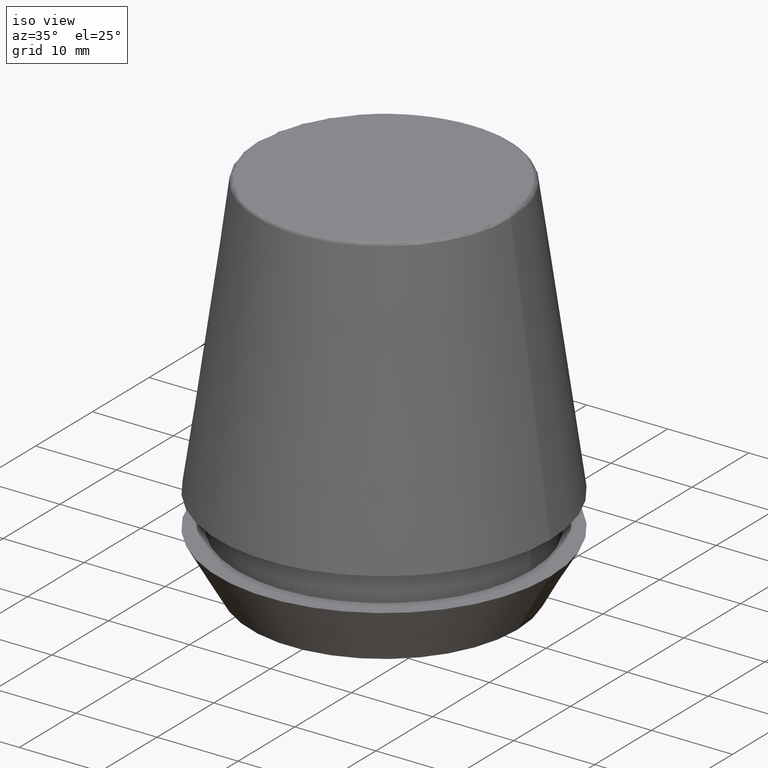
[diagram: clean part render]
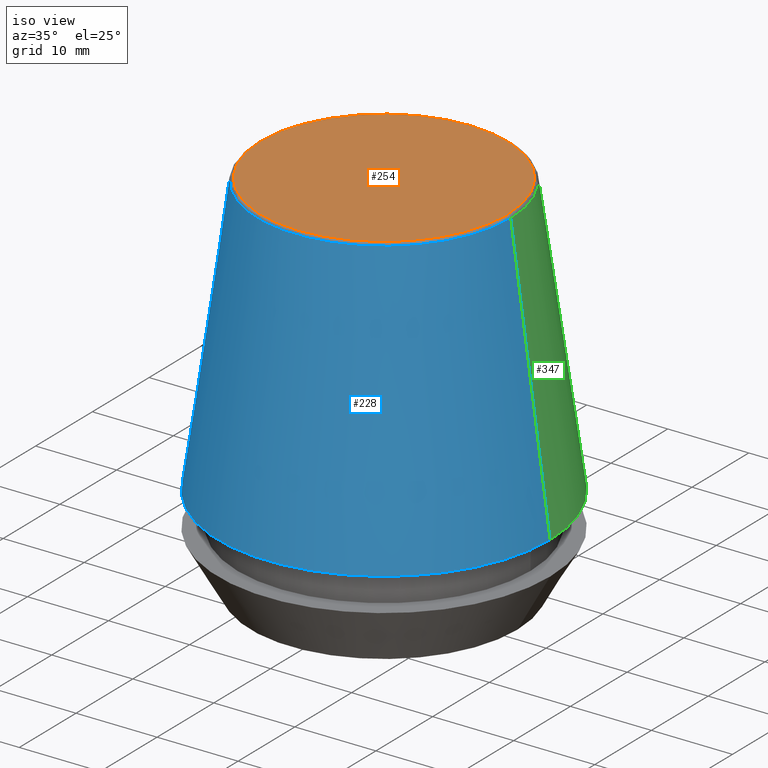
[diagram: same view with three faces highlighted in distinct colors, each labeled with its STEP entity id]
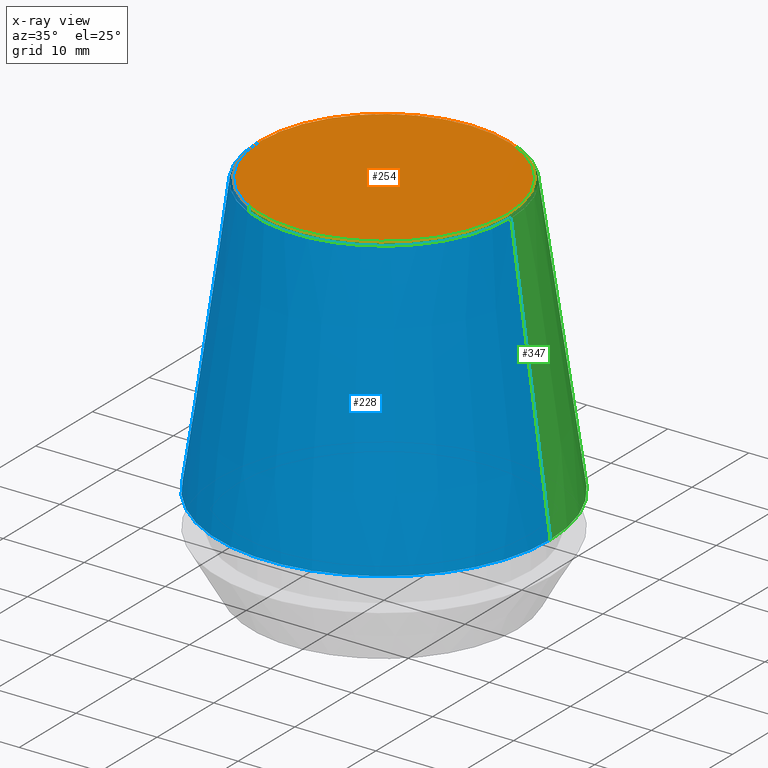
[diagram: x-ray of the same camera — body ghosted, the three highlighted faces saturated]
A machine part, iso view with three faces highlighted in distinct colors.
The next image is the same camera in x-ray (body ghosted, the three faces saturated) — at least one of them is partly hidden behind the body in this view.
Their STEP definitions:

[orange] entity #254 — the highlighted planar face has unit normal (0, 0, -1).
#36 = ORIENTED_EDGE ( 'NONE', *, *, #66, .T. ) ;
#51 = PLANE ( 'NONE',  #370 ) ;
#66 = EDGE_CURVE ( 'NONE', #146, #302, #201, .T. ) ;
#79 = DIRECTION ( 'NONE',  ( -0.0000000000000000000, -0.0000000000000000000, 1.000000000000000000 ) ) ;
#112 = EDGE_LOOP ( 'NONE', ( #36, #292 ) ) ;
#132 = CARTESIAN_POINT ( 'NONE',  ( 0.0000000000000000000, 0.0000000000000000000, 46.00000000000000000 ) ) ;
#146 = VERTEX_POINT ( 'NONE', #383 ) ;
#154 = FACE_OUTER_BOUND ( 'NONE', #112, .T. ) ;
#165 = DIRECTION ( 'NONE',  ( 0.0000000000000000000, 0.0000000000000000000, -1.000000000000000000 ) ) ;
#169 = DIRECTION ( 'NONE',  ( 1.000000000000000000, 0.0000000000000000000, 0.0000000000000000000 ) ) ;
#192 = CARTESIAN_POINT ( 'NONE',  ( -15.24773554530077600, 1.891563625393435400E-015, 46.00000000000000000 ) ) ;
#201 = CIRCLE ( 'NONE', #282, 15.24773554530077600 ) ;
#218 = AXIS2_PLACEMENT_3D ( 'NONE', #132, #332, #169 ) ;
#254 = ADVANCED_FACE ( 'NONE', ( #154 ), #51, .F. ) ;
#256 = DIRECTION ( 'NONE',  ( 1.000000000000000000, 0.0000000000000000000, 0.0000000000000000000 ) ) ;
#281 = CARTESIAN_POINT ( 'NONE',  ( 0.0000000000000000000, 0.0000000000000000000, 46.00000000000000000 ) ) ;
#282 = AXIS2_PLACEMENT_3D ( 'NONE', #281, #79, #256 ) ;
#292 = ORIENTED_EDGE ( 'NONE', *, *, #359, .T. ) ;
#302 = VERTEX_POINT ( 'NONE', #192 ) ;
#332 = DIRECTION ( 'NONE',  ( -0.0000000000000000000, -0.0000000000000000000, 1.000000000000000000 ) ) ;
#342 = CARTESIAN_POINT ( 'NONE',  ( 0.0000000000000000000, 15.24773554530077600, 46.00000000000000000 ) ) ;
#353 = DIRECTION ( 'NONE',  ( -1.000000000000000000, 0.0000000000000000000, -0.0000000000000000000 ) ) ;
#359 = EDGE_CURVE ( 'NONE', #302, #146, #387, .T. ) ;
#370 = AXIS2_PLACEMENT_3D ( 'NONE', #342, #165, #353 ) ;
#383 = CARTESIAN_POINT ( 'NONE',  ( 15.24773554530077600, 0.0000000000000000000, 46.00000000000000000 ) ) ;
#387 = CIRCLE ( 'NONE', #218, 15.24773554530077600 ) ;

[blue] entity #228 — the highlighted conical surface has half-angle 8 deg.
#23 = ORIENTED_EDGE ( 'NONE', *, *, #378, .T. ) ;
#27 = CARTESIAN_POINT ( 'NONE',  ( -20.50032537154048700, 0.0000000000000000000, 11.09999999999999800 ) ) ;
#35 = VECTOR ( 'NONE', #360, 1000.000000000000000 ) ;
#42 = CIRCLE ( 'NONE', #274, 20.50032537154048700 ) ;
#43 = CARTESIAN_POINT ( 'NONE',  ( 20.50032537154048700, 2.510565784773633700E-015, 11.09999999999999800 ) ) ;
#44 = EDGE_CURVE ( 'NONE', #313, #64, #42, .T. ) ;
#49 = AXIS2_PLACEMENT_3D ( 'NONE', #162, #253, #50 ) ;
#50 = DIRECTION ( 'NONE',  ( -1.000000000000000000, 0.0000000000000000000, 0.0000000000000000000 ) ) ;
#64 = VERTEX_POINT ( 'NONE', #153 ) ;
#70 = VERTEX_POINT ( 'NONE', #188 ) ;
#78 = EDGE_CURVE ( 'NONE', #70, #64, #200, .T. ) ;
#81 = DIRECTION ( 'NONE',  ( 1.000000000000000000, 0.0000000000000000000, 0.0000000000000000000 ) ) ;
#95 = ORIENTED_EDGE ( 'NONE', *, *, #249, .F. ) ;
#99 = ORIENTED_EDGE ( 'NONE', *, *, #44, .T. ) ;
#108 = EDGE_LOOP ( 'NONE', ( #322, #95, #23, #99 ) ) ;
#129 = DIRECTION ( 'NONE',  ( -0.0000000000000000000, -0.0000000000000000000, 1.000000000000000000 ) ) ;
#134 = VERTEX_POINT ( 'NONE', #239 ) ;
#145 = CONICAL_SURFACE ( 'NONE', #49, 20.50032537154048700, 0.1396263401595396200 ) ;
#147 = VECTOR ( 'NONE', #279, 1000.000000000000000 ) ;
#153 = CARTESIAN_POINT ( 'NONE',  ( 20.50032537154048700, 2.510565784773633700E-015, 11.09999999999999800 ) ) ;
#162 = CARTESIAN_POINT ( 'NONE',  ( 0.0000000000000000000, 0.0000000000000000000, 11.09999999999999800 ) ) ;
#188 = CARTESIAN_POINT ( 'NONE',  ( 15.64384277279740400, 2.213191991290356800E-015, 45.65566924038402900 ) ) ;
#200 = LINE ( 'NONE', #43, #147 ) ;
#228 = ADVANCED_FACE ( 'NONE', ( #276 ), #145, .T. ) ;
#237 = DIRECTION ( 'NONE',  ( -0.0000000000000000000, -0.0000000000000000000, 1.000000000000000000 ) ) ;
#239 = CARTESIAN_POINT ( 'NONE',  ( -15.64384277279740400, 0.0000000000000000000, 45.65566924038402900 ) ) ;
#249 = EDGE_CURVE ( 'NONE', #134, #70, #335, .T. ) ;
#253 = DIRECTION ( 'NONE',  ( 0.0000000000000000000, 0.0000000000000000000, -1.000000000000000000 ) ) ;
#258 = CARTESIAN_POINT ( 'NONE',  ( 0.0000000000000000000, 0.0000000000000000000, 11.09999999999999800 ) ) ;
#274 = AXIS2_PLACEMENT_3D ( 'NONE', #258, #237, #81 ) ;
#276 = FACE_OUTER_BOUND ( 'NONE', #108, .T. ) ;
#279 = DIRECTION ( 'NONE',  ( 0.1391731009600587200, 1.704378926181473400E-017, -0.9902680687415712500 ) ) ;
#293 = CARTESIAN_POINT ( 'NONE',  ( 0.0000000000000000000, 0.0000000000000000000, 45.65566924038402900 ) ) ;
#296 = CARTESIAN_POINT ( 'NONE',  ( -20.50032537154048700, 0.0000000000000000000, 11.09999999999999800 ) ) ;
#313 = VERTEX_POINT ( 'NONE', #296 ) ;
#322 = ORIENTED_EDGE ( 'NONE', *, *, #78, .F. ) ;
#329 = DIRECTION ( 'NONE',  ( 1.000000000000000000, 0.0000000000000000000, 0.0000000000000000000 ) ) ;
#331 = AXIS2_PLACEMENT_3D ( 'NONE', #293, #129, #329 ) ;
#335 = CIRCLE ( 'NONE', #331, 15.64384277279740400 ) ;
#360 = DIRECTION ( 'NONE',  ( -0.1391731009600587200, 0.0000000000000000000, -0.9902680687415712500 ) ) ;
#371 = LINE ( 'NONE', #27, #35 ) ;
#378 = EDGE_CURVE ( 'NONE', #134, #313, #371, .T. ) ;

[green] entity #347 — the highlighted conical surface has half-angle 8 deg.
#5 = EDGE_CURVE ( 'NONE', #64, #313, #369, .T. ) ;
#16 = ORIENTED_EDGE ( 'NONE', *, *, #378, .F. ) ;
#18 = CONICAL_SURFACE ( 'NONE', #240, 20.50032537154048700, 0.1396263401595396200 ) ;
#27 = CARTESIAN_POINT ( 'NONE',  ( -20.50032537154048700, 0.0000000000000000000, 11.09999999999999800 ) ) ;
#30 = ORIENTED_EDGE ( 'NONE', *, *, #78, .T. ) ;
#35 = VECTOR ( 'NONE', #360, 1000.000000000000000 ) ;
#38 = AXIS2_PLACEMENT_3D ( 'NONE', #140, #171, #271 ) ;
#39 = CARTESIAN_POINT ( 'NONE',  ( 0.0000000000000000000, 0.0000000000000000000, 45.65566924038402900 ) ) ;
#43 = CARTESIAN_POINT ( 'NONE',  ( 20.50032537154048700, 2.510565784773633700E-015, 11.09999999999999800 ) ) ;
#64 = VERTEX_POINT ( 'NONE', #153 ) ;
#70 = VERTEX_POINT ( 'NONE', #188 ) ;
#78 = EDGE_CURVE ( 'NONE', #70, #64, #200, .T. ) ;
#100 = EDGE_LOOP ( 'NONE', ( #155, #30, #135, #16 ) ) ;
#127 = AXIS2_PLACEMENT_3D ( 'NONE', #39, #128, #326 ) ;
#128 = DIRECTION ( 'NONE',  ( -0.0000000000000000000, -0.0000000000000000000, 1.000000000000000000 ) ) ;
#134 = VERTEX_POINT ( 'NONE', #239 ) ;
#135 = ORIENTED_EDGE ( 'NONE', *, *, #5, .T. ) ;
#140 = CARTESIAN_POINT ( 'NONE',  ( 0.0000000000000000000, 0.0000000000000000000, 11.09999999999999800 ) ) ;
#147 = VECTOR ( 'NONE', #279, 1000.000000000000000 ) ;
#153 = CARTESIAN_POINT ( 'NONE',  ( 20.50032537154048700, 2.510565784773633700E-015, 11.09999999999999800 ) ) ;
#155 = ORIENTED_EDGE ( 'NONE', *, *, #206, .F. ) ;
#167 = DIRECTION ( 'NONE',  ( -1.000000000000000000, 0.0000000000000000000, 0.0000000000000000000 ) ) ;
#171 = DIRECTION ( 'NONE',  ( -0.0000000000000000000, -0.0000000000000000000, 1.000000000000000000 ) ) ;
#188 = CARTESIAN_POINT ( 'NONE',  ( 15.64384277279740400, 2.213191991290356800E-015, 45.65566924038402900 ) ) ;
#195 = DIRECTION ( 'NONE',  ( 0.0000000000000000000, 0.0000000000000000000, -1.000000000000000000 ) ) ;
#200 = LINE ( 'NONE', #43, #147 ) ;
#206 = EDGE_CURVE ( 'NONE', #70, #134, #306, .T. ) ;
#219 = CARTESIAN_POINT ( 'NONE',  ( 0.0000000000000000000, 0.0000000000000000000, 11.09999999999999800 ) ) ;
#239 = CARTESIAN_POINT ( 'NONE',  ( -15.64384277279740400, 0.0000000000000000000, 45.65566924038402900 ) ) ;
#240 = AXIS2_PLACEMENT_3D ( 'NONE', #219, #195, #167 ) ;
#271 = DIRECTION ( 'NONE',  ( 1.000000000000000000, 0.0000000000000000000, 0.0000000000000000000 ) ) ;
#279 = DIRECTION ( 'NONE',  ( 0.1391731009600587200, 1.704378926181473400E-017, -0.9902680687415712500 ) ) ;
#284 = FACE_OUTER_BOUND ( 'NONE', #100, .T. ) ;
#296 = CARTESIAN_POINT ( 'NONE',  ( -20.50032537154048700, 0.0000000000000000000, 11.09999999999999800 ) ) ;
#306 = CIRCLE ( 'NONE', #127, 15.64384277279740400 ) ;
#313 = VERTEX_POINT ( 'NONE', #296 ) ;
#326 = DIRECTION ( 'NONE',  ( 1.000000000000000000, 0.0000000000000000000, 0.0000000000000000000 ) ) ;
#347 = ADVANCED_FACE ( 'NONE', ( #284 ), #18, .T. ) ;
#360 = DIRECTION ( 'NONE',  ( -0.1391731009600587200, 0.0000000000000000000, -0.9902680687415712500 ) ) ;
#369 = CIRCLE ( 'NONE', #38, 20.50032537154048700 ) ;
#371 = LINE ( 'NONE', #27, #35 ) ;
#378 = EDGE_CURVE ( 'NONE', #134, #313, #371, .T. ) ;